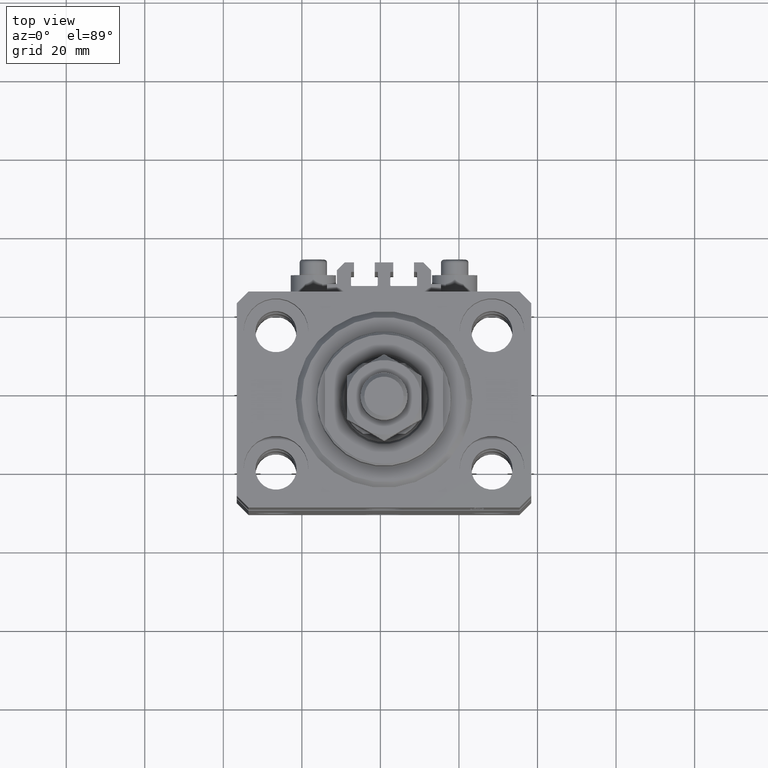
[diagram: clean part render]
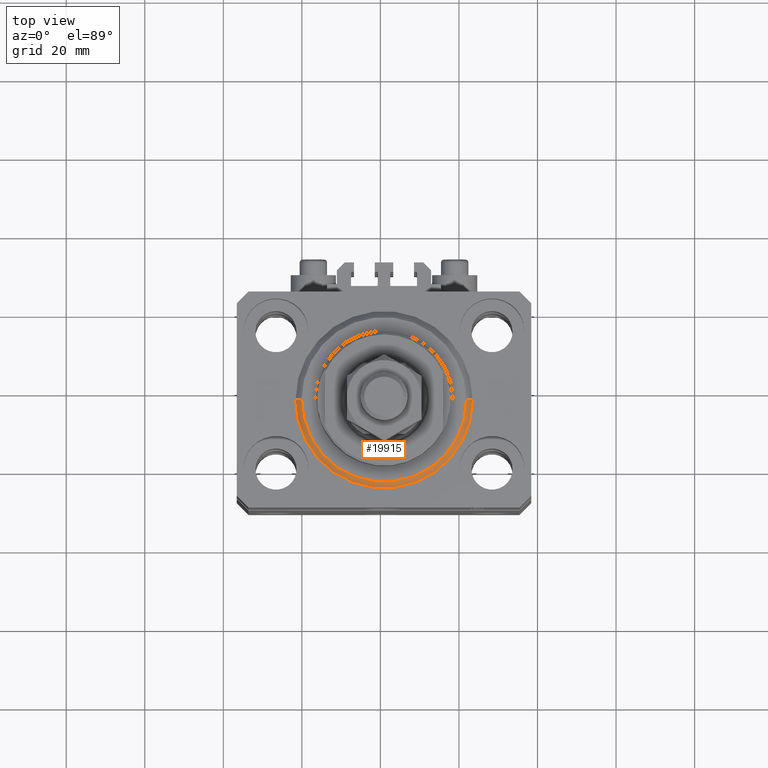
[diagram: same view with one face highlighted and labeled with its STEP entity id]
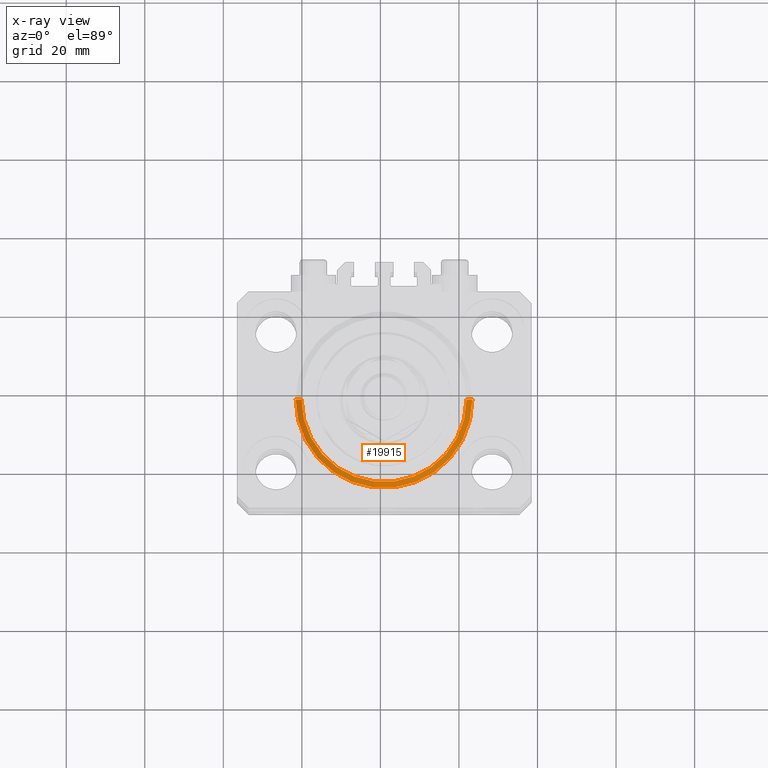
[diagram: x-ray of the same camera — body ghosted, the highlighted face saturated]
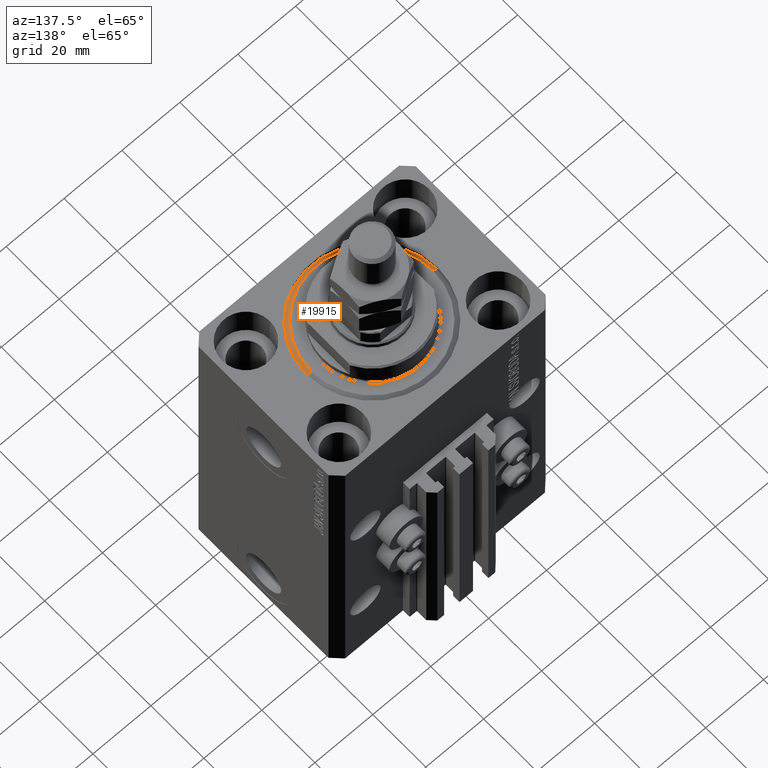
[diagram: same view with one face highlighted and labeled with its STEP entity id]
A machine part, top view. The second image highlights one B-rep face of the part: STEP entity #19915.
The next image is the same camera in x-ray: the body ghosted, the highlighted face saturated — about 0% of this face is hidden behind the body in this view.
A second angle (auxiliary view) of the same face is appended — the face is thin or edge-on in the first view.
In plain terms, the highlighted conical surface has half-angle 45 deg.
Its self-contained STEP definition (entity closure, byte-faithful):
#2022 = CIRCLE ( 'NONE', #22796, 20.99999999999998934 ) ;
#3946 = EDGE_LOOP ( 'NONE', ( #13933, #31373, #28907, #44723 ) ) ;
#6073 = DIRECTION ( 'NONE',  ( -0.000000000000000000, -0.000000000000000000, 1.000000000000000000 ) ) ;
#7006 = DIRECTION ( 'NONE',  ( -0.7071067811865500152, 8.659560562354963673E-17, 0.7071067811865451302 ) ) ;
#7150 = VERTEX_POINT ( 'NONE', #16525 ) ;
#8500 = AXIS2_PLACEMENT_3D ( 'NONE', #47358, #6073, #32349 ) ;
#12242 = CARTESIAN_POINT ( 'NONE',  ( 0.000000000000000000, 0.000000000000000000, 0.000000000000000000 ) ) ;
#13064 = FACE_OUTER_BOUND ( 'NONE', #3946, .T. ) ;
#13933 = ORIENTED_EDGE ( 'NONE', *, *, #37072, .F. ) ;
#16525 = CARTESIAN_POINT ( 'NONE',  ( -20.99999999999998934, 2.663606788145492628E-15, 0.000000000000000000 ) ) ;
#16636 = VERTEX_POINT ( 'NONE', #19626 ) ;
#16882 = EDGE_CURVE ( 'NONE', #37467, #7150, #2022, .T. ) ;
#17043 = DIRECTION ( 'NONE',  ( -0.000000000000000000, -0.000000000000000000, 1.000000000000000000 ) ) ;
#17302 = CARTESIAN_POINT ( 'NONE',  ( 22.50000000000000355, 0.000000000000000000, 1.500000000000001332 ) ) ;
#18084 = DIRECTION ( 'NONE',  ( -0.000000000000000000, -0.000000000000000000, -1.000000000000000000 ) ) ;
#19626 = CARTESIAN_POINT ( 'NONE',  ( -22.50000000000000355, 0.000000000000000000, 1.500000000000001332 ) ) ;
#19915 = ADVANCED_FACE ( 'NONE', ( #13064 ), #38074, .T. ) ;
#20067 = LINE ( 'NONE', #17302, #42409 ) ;
#22796 = AXIS2_PLACEMENT_3D ( 'NONE', #12242, #18084, #23748 ) ;
#23071 = EDGE_CURVE ( 'NONE', #37467, #40397, #20067, .T. ) ;
#23748 = DIRECTION ( 'NONE',  ( 1.000000000000000000, 0.000000000000000000, 0.000000000000000000 ) ) ;
#25768 = CARTESIAN_POINT ( 'NONE',  ( 22.50000000000000355, 2.755455298081545172E-15, 1.500000000000001332 ) ) ;
#28066 = DIRECTION ( 'NONE',  ( 0.7071067811865500152, 0.000000000000000000, 0.7071067811865451302 ) ) ;
#28907 = ORIENTED_EDGE ( 'NONE', *, *, #23071, .T. ) ;
#30469 = CARTESIAN_POINT ( 'NONE',  ( 20.99999999999998934, 0.000000000000000000, 0.000000000000000000 ) ) ;
#31373 = ORIENTED_EDGE ( 'NONE', *, *, #16882, .F. ) ;
#32318 = DIRECTION ( 'NONE',  ( 1.000000000000000000, 0.000000000000000000, 0.000000000000000000 ) ) ;
#32349 = DIRECTION ( 'NONE',  ( 1.000000000000000000, 0.000000000000000000, 0.000000000000000000 ) ) ;
#33215 = CIRCLE ( 'NONE', #45998, 22.50000000000000355 ) ;
#34035 = VECTOR ( 'NONE', #7006, 1000.000000000000114 ) ;
#37072 = EDGE_CURVE ( 'NONE', #7150, #16636, #41049, .T. ) ;
#37467 = VERTEX_POINT ( 'NONE', #30469 ) ;
#38074 = CONICAL_SURFACE ( 'NONE', #8500, 22.50000000000000355, 0.7853981633974517207 ) ;
#40052 = CARTESIAN_POINT ( 'NONE',  ( 0.000000000000000000, 0.000000000000000000, 1.500000000000001332 ) ) ;
#40265 = EDGE_CURVE ( 'NONE', #16636, #40397, #33215, .T. ) ;
#40397 = VERTEX_POINT ( 'NONE', #25768 ) ;
#41049 = LINE ( 'NONE', #41296, #34035 ) ;
#41296 = CARTESIAN_POINT ( 'NONE',  ( -22.50000000000000355, 2.755455298081545172E-15, 1.500000000000001332 ) ) ;
#42409 = VECTOR ( 'NONE', #28066, 1000.000000000000114 ) ;
#44723 = ORIENTED_EDGE ( 'NONE', *, *, #40265, .F. ) ;
#45998 = AXIS2_PLACEMENT_3D ( 'NONE', #40052, #17043, #32318 ) ;
#47358 = CARTESIAN_POINT ( 'NONE',  ( 0.000000000000000000, 0.000000000000000000, 1.500000000000001332 ) ) ;